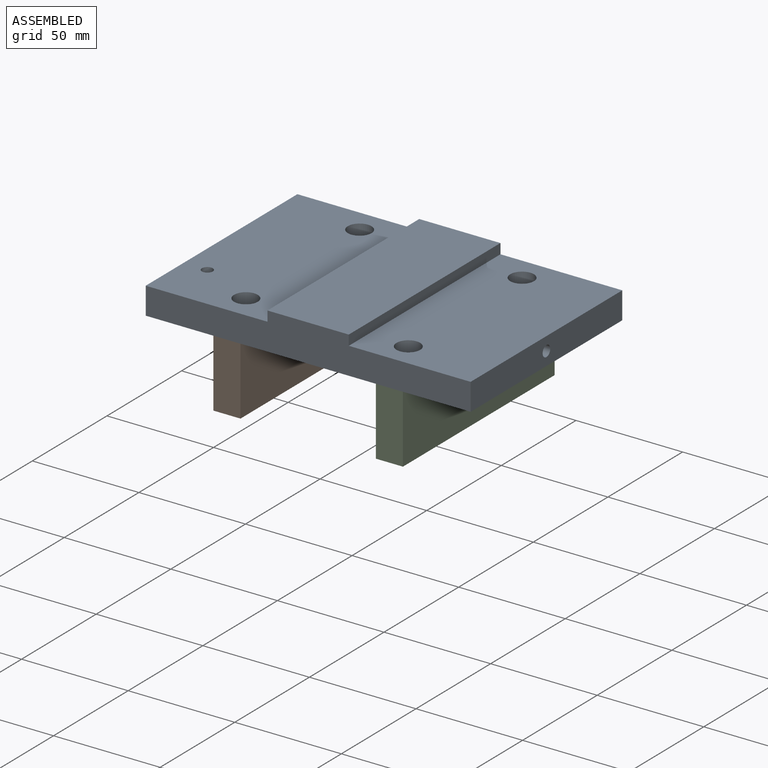
[diagram: assembled view]
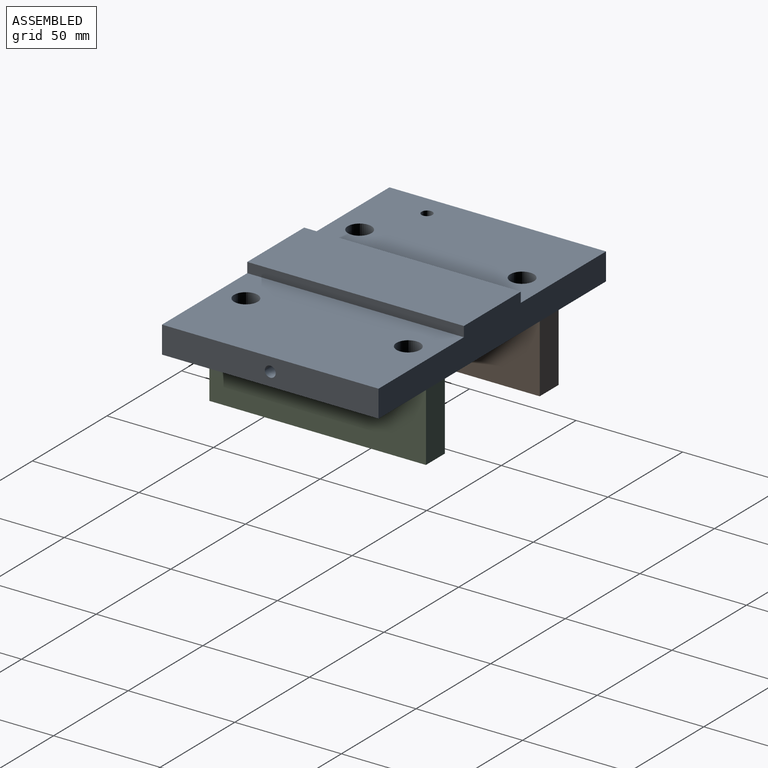
[diagram: assembled view, second angle]
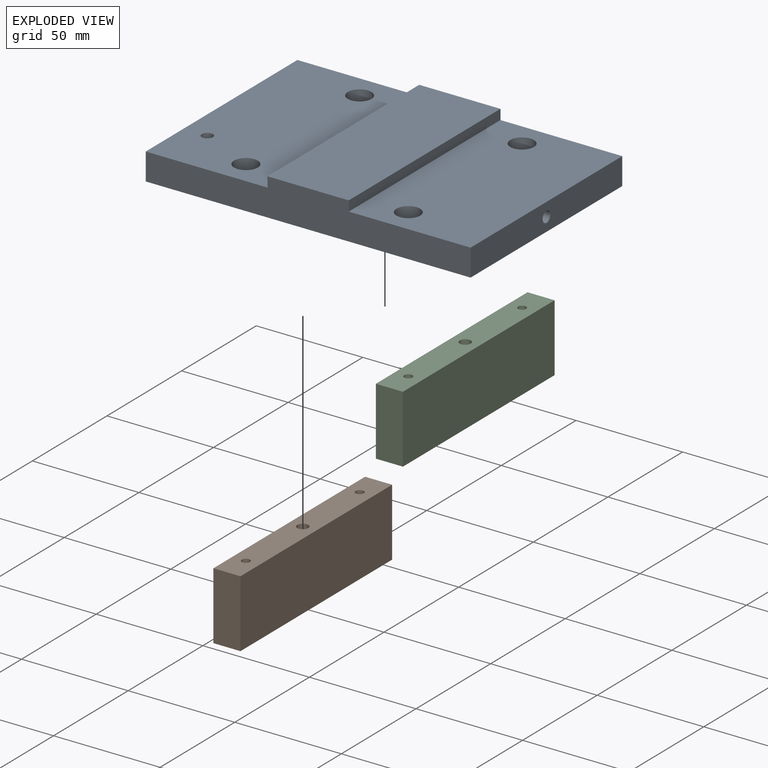
[diagram: exploded view]
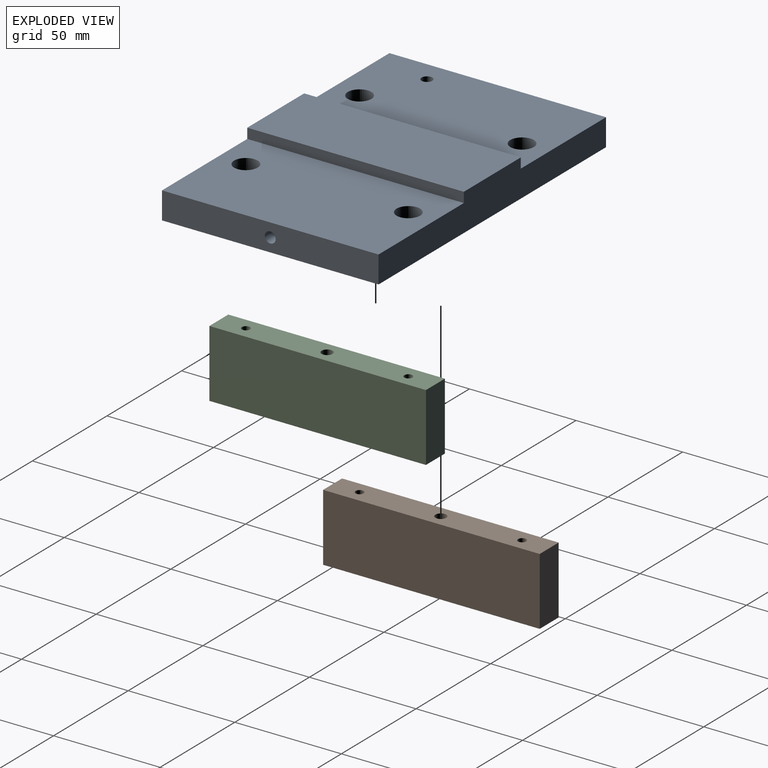
[diagram: exploded view, second angle]
ASSEMBLY  parts=3 mates=2
PART A: 25 faces, bbox 152.4x101.6x17.5 mm
  f0: plane 101.6x57.15mm, normal (0,0,1), area 5612.5mm2, adj f4,f5,f6,f12,f15,f19
  f1: plane 101.6x57.15mm, normal (0,0,1), area 5592mm2, adj f2,f5,f6,f9,f18,f21,f24
  f2: plane 101.6x12.7mm, normal (-1,0,0), area 1290.3mm2, adj f1,f3,f5,f6
  f3: plane 152.4x101.6mm, normal (0,0,-1), area 15320mm2, adj f2,f4,f5,f6,f7,f10,f13,f16
  f4: plane 101.6x12.7mm, normal (1,0,0), area 1269.8mm2, adj f0,f3,f5,f6,f22
  f5: plane 152.4x17.46mm, normal (0,-1,0), area 2116.9mm2, adj f0,f1,f2,f3,f4,f19,f20,f21
  f6: plane 152.4x17.46mm, normal (0,1,0), area 2116.9mm2, adj f0,f1,f2,f3,f4,f19,f20,f21
  f7: cylinder r=3.38mm len=6.76mm, axis (0,0,1), area 134.8mm2, adj f3,f8
  f8: plane 11.11x11.11mm, normal (0,0,1), area 61.1mm2, adj f7,f9
  f9: cylinder r=5.56mm len=11.11mm, axis (0,0,1), area 221.7mm2, adj f1,f8
  f10: cylinder r=3.38mm len=6.76mm, axis (0,0,1), area 134.8mm2, adj f3,f11
  f11: plane 11.11x11.11mm, normal (0,0,1), area 61.1mm2, adj f10,f12
  f12: cylinder r=5.56mm len=11.11mm, axis (0,0,1), area 221.7mm2, adj f0,f11
  f13: cylinder r=3.38mm len=6.76mm, axis (0,0,1), area 134.8mm2, adj f3,f14
  f14: plane 11.11x11.11mm, normal (0,0,1), area 61.1mm2, adj f13,f15
  f15: cylinder r=5.56mm len=11.11mm, axis (0,0,1), area 221.7mm2, adj f0,f14
  f16: cylinder r=3.38mm len=6.76mm, axis (0,0,1), area 134.8mm2, adj f3,f17
  f17: plane 11.11x11.11mm, normal (0,0,1), area 61.1mm2, adj f16,f18
  f18: cylinder r=5.56mm len=11.11mm, axis (0,0,1), area 221.7mm2, adj f1,f17
  f19: plane 101.6x4.76mm, normal (1,0,0), area 483.9mm2, adj f0,f5,f6,f20
  f20: plane 101.6x38.1mm, normal (0,0,1), area 3871mm2, adj f5,f6,f19,f21
  f21: plane 101.6x4.76mm, normal (-1,0,0), area 483.9mm2, adj f1,f5,f6,f20
  f22: cylinder r=2.55mm len=12.7mm, axis (1,0,0), area 203.7mm2, adj f4,f23
  f23: cone r=0mm half-angle=59deg, axis (1,0,0), area 23.9mm2, adj f22
  f24: cylinder r=2.55mm len=12.7mm, axis (0,0,1), area 203.7mm2, adj f1,f3
PART B: 12 faces, bbox 12.7x101.6x31.8 mm
  f0: plane 101.6x12.7mm, normal (0,0,1), area 1247.2mm2, adj f1,f3,f4,f5,f6,f8,f11
  f1: plane 101.6x31.75mm, normal (-1,0,0), area 3225.8mm2, adj f0,f2,f4,f5
  f2: plane 101.6x12.7mm, normal (0,0,-1), area 1290.3mm2, adj f1,f3,f4,f5
  f3: plane 101.6x31.75mm, normal (1,0,0), area 3225.8mm2, adj f0,f2,f4,f5
  f4: plane 31.75x12.7mm, normal (0,-1,0), area 403.2mm2, adj f0,f1,f2,f3
  f5: plane 31.75x12.7mm, normal (0,1,0), area 403.2mm2, adj f0,f1,f2,f3
  f6: cylinder r=1.9mm len=15.88mm, axis (0,0,1), area 189.4mm2, adj f0,f7
  f7: cone r=0mm half-angle=59deg, axis (0,0,1), area 13.2mm2, adj f6
  f8: cylinder r=1.9mm len=15.88mm, axis (0,0,1), area 189.4mm2, adj f0,f9
  f9: cone r=0mm half-angle=59deg, axis (0,0,1), area 13.2mm2, adj f8
  f10: cone r=0mm half-angle=59deg, axis (0,0,1), area 23.9mm2, adj f11
  f11: cylinder r=2.55mm len=12.7mm, axis (0,0,1), area 203.7mm2, adj f0,f10
PART C: same geometry as B
PLACE A at identity fixed
PLACE B t=(-38.1,0,-22.22)mm
PLACE C t=(38.1,0,-22.22)mm
MATE fastened B.f8 <-> A.f7  axis (0,0,1) through (-38.1,38.1,-6.35)mm
MATE fastened C.f8 <-> A.f10  axis (0,0,1) through (38.1,38.1,-6.35)mm
